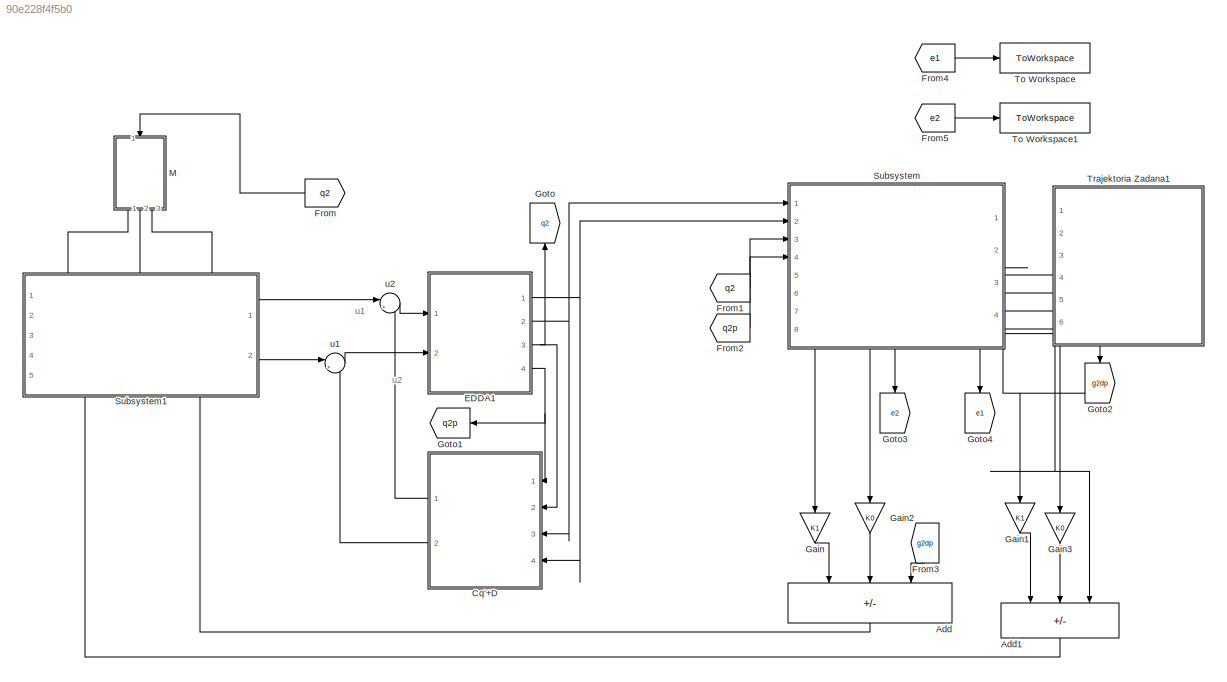
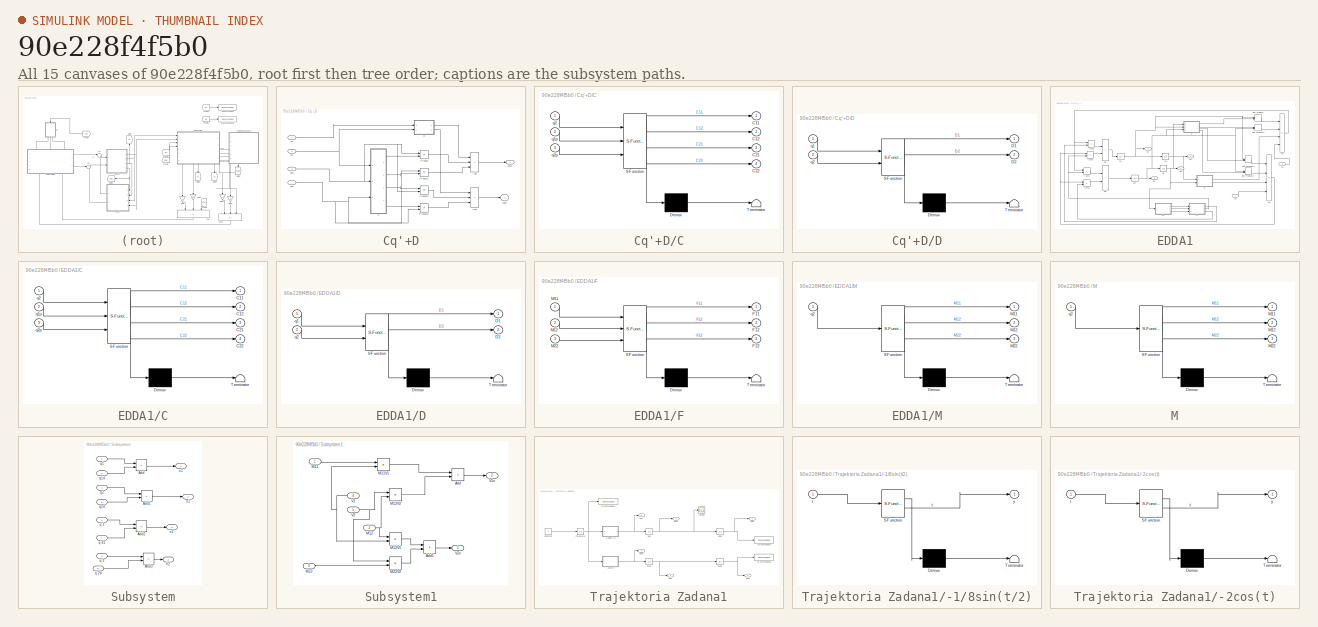
[diagram: thumbnail index - all 15 canvases of the model, root first then tree order]
MODEL slx_90e228f4f5b0
KIND model
CONFIG AbsTol = auto
CONFIG EnableMultiTasking = off
CONFIG FixedStep = auto
CONFIG MaxStep = auto
CONFIG MinStep = auto
CONFIG RelTol = 1e-10
CONFIG SampleTimeConstraint = Unconstrained
CONFIG SolverName = ode45
CONFIG StartTime = 0.0
CONFIG StopTime = 100
BLOCK [Sum] Add
  IconShape = rectangular
  Inputs = --+
  NameLocation = left
  Ports = [3, 1]
BLOCK [Sum] Add1
  IconShape = rectangular
  Inputs = --+
  NameLocation = left
  Ports = [3, 1]
BLOCK [SubSystem] Cq'+D
  NameLocation = top
  Ports = [4, 2]
  RequestExecContextInheritance = off
BLOCK [Sum] Cq'+D/Add
  IconShape = rectangular
  Inputs = +++
  Ports = [3, 1]
BLOCK [Sum] Cq'+D/Add1
  IconShape = rectangular
  Inputs = +++
  Ports = [3, 1]
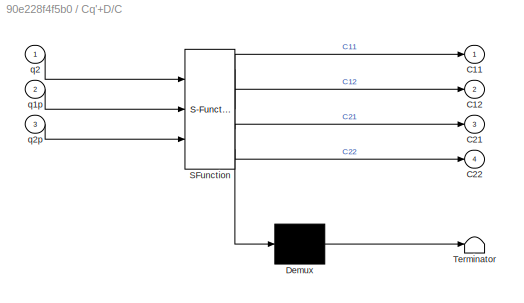
BLOCK [SubSystem] Cq'+D/C
  ErrorFcn = Stateflow.Translate.translate
  PermitHierarchicalResolution = ExplicitOnly
  Ports = [3, 4]
  RequestExecContextInheritance = off
  SFBlockType = MATLAB Function
  TreatAsAtomicUnit = on
BLOCK [Demux] Cq'+D/C/ Demux 
  Outputs = 1
  Ports = [1, 1]
BLOCK [S-Function] Cq'+D/C/ SFunction 
  EnableBusSupport = on
  FunctionName = sf_sfun
  Parameters = Theta4
  PortCounts = [3 5]
  Ports = [3, 5]
  SFcnIsStateOwnerBlock = off
  SFunctionDeploymentMode = off
  Tag = Stateflow S-Function 14
BLOCK [Terminator] Cq'+D/C/ Terminator 
BLOCK [Outport] Cq'+D/C/C11
BLOCK [Outport] Cq'+D/C/C12
  Port = 2
BLOCK [Outport] Cq'+D/C/C21
  Port = 3
BLOCK [Outport] Cq'+D/C/C22
  Port = 4
BLOCK [Inport] Cq'+D/C/q1p
  Port = 2
BLOCK [Inport] Cq'+D/C/q2
BLOCK [Inport] Cq'+D/C/q2p
  Port = 3
BLOCK [SubSystem] Cq'+D/D
  ErrorFcn = Stateflow.Translate.translate
  PermitHierarchicalResolution = ExplicitOnly
  Ports = [2, 2]
  RequestExecContextInheritance = off
  SFBlockType = MATLAB Function
  TreatAsAtomicUnit = on
BLOCK [Demux] Cq'+D/D/ Demux 
  Outputs = 1
  Ports = [1, 1]
BLOCK [S-Function] Cq'+D/D/ SFunction 
  EnableBusSupport = on
  FunctionName = sf_sfun
  Parameters = Theta2,Theta4,g
  PortCounts = [2 3]
  Ports = [2, 3]
  SFcnIsStateOwnerBlock = off
  SFunctionDeploymentMode = off
  Tag = Stateflow S-Function 13
BLOCK [Terminator] Cq'+D/D/ Terminator 
BLOCK [Outport] Cq'+D/D/D1
BLOCK [Outport] Cq'+D/D/D2
  Port = 2
BLOCK [Inport] Cq'+D/D/q1
BLOCK [Inport] Cq'+D/D/q2
  Port = 2
BLOCK [Product] Cq'+D/Product
  Ports = [2, 1]
BLOCK [Product] Cq'+D/Product1
  Ports = [2, 1]
BLOCK [Product] Cq'+D/Product2
  Ports = [2, 1]
BLOCK [Product] Cq'+D/Product3
  Ports = [2, 1]
BLOCK [Outport] Cq'+D/cqd1
  Port = 2
BLOCK [Outport] Cq'+D/cqd2
BLOCK [Inport] Cq'+D/q1
  Port = 4
BLOCK [Inport] Cq'+D/q1p
  NameLocation = right
  Port = 3
BLOCK [Inport] Cq'+D/q2
  Port = 2
BLOCK [Inport] Cq'+D/q2p
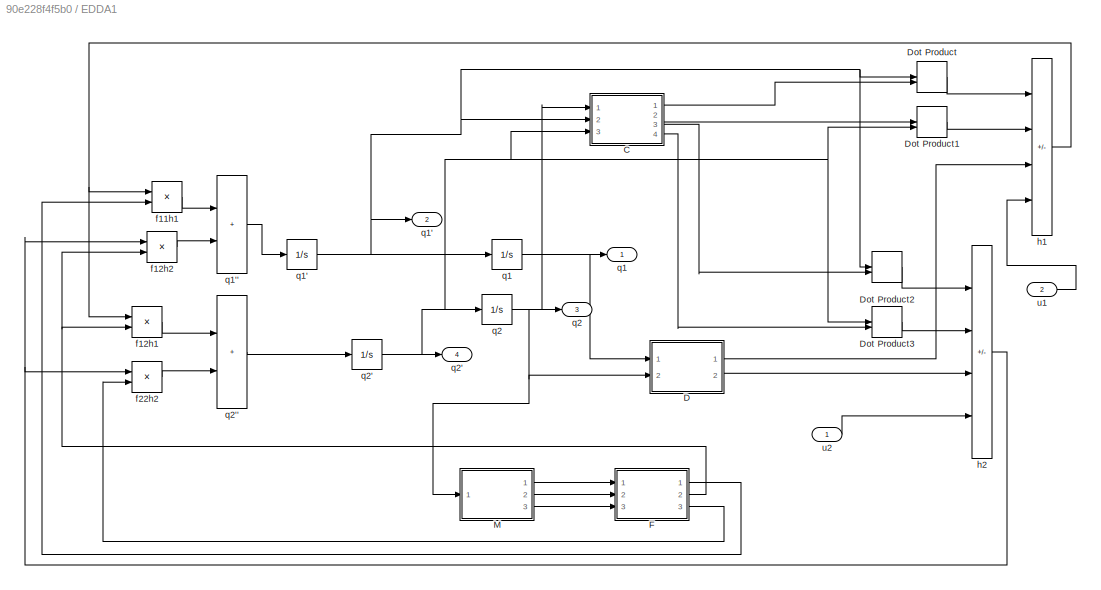
BLOCK [SubSystem] EDDA1
  Ports = [2, 4]
  RequestExecContextInheritance = off
BLOCK [Integrator] EDDA1/ q1
  Ports = [1, 1]
BLOCK [Integrator] EDDA1/ q1'
  Ports = [1, 1]
BLOCK [Integrator] EDDA1/ q2
  Ports = [1, 1]
BLOCK [Integrator] EDDA1/ q2'
  Ports = [1, 1]
BLOCK [SubSystem] EDDA1/C
  ErrorFcn = Stateflow.Translate.translate
  PermitHierarchicalResolution = ExplicitOnly
  Ports = [3, 4]
  RequestExecContextInheritance = off
  SFBlockType = MATLAB Function
  TreatAsAtomicUnit = on
BLOCK [Demux] EDDA1/C/ Demux 
  Outputs = 1
  Ports = [1, 1]
BLOCK [S-Function] EDDA1/C/ SFunction 
  EnableBusSupport = on
  FunctionName = sf_sfun
  Parameters = Theta4
  PortCounts = [3 5]
  Ports = [3, 5]
  SFcnIsStateOwnerBlock = off
  SFunctionDeploymentMode = off
  Tag = Stateflow S-Function 7
BLOCK [Terminator] EDDA1/C/ Terminator 
BLOCK [Outport] EDDA1/C/C11
BLOCK [Outport] EDDA1/C/C12
  Port = 2
BLOCK [Outport] EDDA1/C/C21
  Port = 3
BLOCK [Outport] EDDA1/C/C22
  Port = 4
BLOCK [Inport] EDDA1/C/q1p
  Port = 2
BLOCK [Inport] EDDA1/C/q2
BLOCK [Inport] EDDA1/C/q2p
  Port = 3
BLOCK [SubSystem] EDDA1/D
  ErrorFcn = Stateflow.Translate.translate
  PermitHierarchicalResolution = ExplicitOnly
  Ports = [2, 2]
  RequestExecContextInheritance = off
  SFBlockType = MATLAB Function
  TreatAsAtomicUnit = on
BLOCK [Demux] EDDA1/D/ Demux 
  Outputs = 1
  Ports = [1, 1]
BLOCK [S-Function] EDDA1/D/ SFunction 
  EnableBusSupport = on
  FunctionName = sf_sfun
  Parameters = Theta2,Theta4,g
  PortCounts = [2 3]
  Ports = [2, 3]
  SFcnIsStateOwnerBlock = off
  SFunctionDeploymentMode = off
  Tag = Stateflow S-Function 8
BLOCK [Terminator] EDDA1/D/ Terminator 
BLOCK [Outport] EDDA1/D/D1
BLOCK [Outport] EDDA1/D/D2
  Port = 2
BLOCK [Inport] EDDA1/D/q1
BLOCK [Inport] EDDA1/D/q2
  Port = 2
BLOCK [DotProduct] EDDA1/Dot Product
  OutDataTypeStr = Inherit: Inherit via internal rule
BLOCK [DotProduct] EDDA1/Dot Product1
  OutDataTypeStr = Inherit: Inherit via internal rule
BLOCK [DotProduct] EDDA1/Dot Product2
  OutDataTypeStr = Inherit: Inherit via internal rule
BLOCK [DotProduct] EDDA1/Dot Product3
  OutDataTypeStr = Inherit: Inherit via internal rule
BLOCK [SubSystem] EDDA1/F
  ErrorFcn = Stateflow.Translate.translate
  PermitHierarchicalResolution = ExplicitOnly
  Ports = [3, 3]
  RequestExecContextInheritance = off
  SFBlockType = MATLAB Function
  TreatAsAtomicUnit = on
BLOCK [Demux] EDDA1/F/ Demux 
  Outputs = 1
  Ports = [1, 1]
BLOCK [S-Function] EDDA1/F/ SFunction 
  EnableBusSupport = on
  FunctionName = sf_sfun
  PortCounts = [3 4]
  Ports = [3, 4]
  SFcnIsStateOwnerBlock = off
  SFunctionDeploymentMode = off
  Tag = Stateflow S-Function 9
BLOCK [Terminator] EDDA1/F/ Terminator 
BLOCK [Outport] EDDA1/F/F11
BLOCK [Outport] EDDA1/F/F12
  Port = 2
BLOCK [Outport] EDDA1/F/F22
  Port = 3
BLOCK [Inport] EDDA1/F/M11
BLOCK [Inport] EDDA1/F/M12
  Port = 2
BLOCK [Inport] EDDA1/F/M22
  Port = 3
BLOCK [SubSystem] EDDA1/M
  ErrorFcn = Stateflow.Translate.translate
  PermitHierarchicalResolution = ExplicitOnly
  Ports = [1, 3]
  RequestExecContextInheritance = off
  SFBlockType = MATLAB Function
  TreatAsAtomicUnit = on
BLOCK [Demux] EDDA1/M/ Demux 
  Outputs = 1
  Ports = [1, 1]
BLOCK [S-Function] EDDA1/M/ SFunction 
  EnableBusSupport = on
  FunctionName = sf_sfun
  Parameters = Theta1,Theta3,Theta4
  PortCounts = [1 4]
  Ports = [1, 4]
  SFcnIsStateOwnerBlock = off
  SFunctionDeploymentMode = off
  Tag = Stateflow S-Function 10
BLOCK [Terminator] EDDA1/M/ Terminator 
BLOCK [Outport] EDDA1/M/M11
BLOCK [Outport] EDDA1/M/M12
  Port = 2
BLOCK [Outport] EDDA1/M/M22
  Port = 3
BLOCK [Inport] EDDA1/M/q2
BLOCK [Product] EDDA1/f11h1
  Ports = [2, 1]
BLOCK [Product] EDDA1/f12h1
  Ports = [2, 1]
BLOCK [Product] EDDA1/f12h2
  Ports = [2, 1]
BLOCK [Product] EDDA1/f22h2
  Ports = [2, 1]
BLOCK [Sum] EDDA1/h1
  IconShape = rectangular
  Inputs = ---+
  Ports = [4, 1]
BLOCK [Sum] EDDA1/h2
  IconShape = rectangular
  Inputs = ---+
  Ports = [4, 1]
BLOCK [Outport] EDDA1/q1
BLOCK [Outport] EDDA1/q1'
  Port = 2
BLOCK [Sum] EDDA1/q1''
  IconShape = rectangular
  Ports = [2, 1]
BLOCK [Outport] EDDA1/q2
  Port = 3
BLOCK [Outport] EDDA1/q2'
  Port = 4
BLOCK [Sum] EDDA1/q2''
  IconShape = rectangular
  Ports = [2, 1]
BLOCK [Inport] EDDA1/u1
  Port = 2
BLOCK [Inport] EDDA1/u2
BLOCK [From] From
  GotoTag = q2
  NameLocation = top
BLOCK [From] From1
  GotoTag = q2
BLOCK [From] From2
  GotoTag = q2p
BLOCK [From] From3
  GotoTag = g2dp
  NameLocation = left
BLOCK [From] From4
  GotoTag = e1
BLOCK [From] From5
  GotoTag = e2
BLOCK [Gain] Gain
  Gain = K1
  NameLocation = left
BLOCK [Gain] Gain1
  Gain = K1
  NameLocation = left
BLOCK [Gain] Gain2
  Gain = K0
  NameLocation = left
BLOCK [Gain] Gain3
  Gain = K0
  NameLocation = left
BLOCK [Goto] Goto
  GotoTag = q2
  NameLocation = right
BLOCK [Goto] Goto1
  GotoTag = q2p
  NameLocation = top
BLOCK [Goto] Goto2
  GotoTag = g2dp
  NameLocation = left
BLOCK [Goto] Goto3
  GotoTag = e2
  NameLocation = left
BLOCK [Goto] Goto4
  GotoTag = e1
  NameLocation = left
BLOCK [SubSystem] M
  ErrorFcn = Stateflow.Translate.translate
  NameLocation = left
  PermitHierarchicalResolution = ExplicitOnly
  Ports = [1, 3]
  RequestExecContextInheritance = off
  SFBlockType = MATLAB Function
  TreatAsAtomicUnit = on
BLOCK [Demux] M/ Demux 
  Outputs = 1
  Ports = [1, 1]
BLOCK [S-Function] M/ SFunction 
  EnableBusSupport = on
  FunctionName = sf_sfun
  Parameters = Theta1,Theta3,Theta4
  PortCounts = [1 4]
  Ports = [1, 4]
  SFcnIsStateOwnerBlock = off
  SFunctionDeploymentMode = off
  Tag = Stateflow S-Function 15
BLOCK [Terminator] M/ Terminator 
BLOCK [Outport] M/M11
BLOCK [Outport] M/M12
  Port = 2
BLOCK [Outport] M/M22
  Port = 3
BLOCK [Inport] M/q2
BLOCK [SubSystem] Subsystem
  PortSchema = {"entries":[{"content":{"sides":[{"content":{"connectorIds":["In1","In2","In3","In4"]},"type":"ConnectorPlacement.EquallySpacedRectSide","uuid":"3303e5f2-67ee-45b6-97a0-23586c48cd6c"},{"content":{"connectorIds":["In5","In6","In7","In8"],"side":"RIGHT"},"type":"ConnectorPlacement.EquallySpacedRectSide","uuid":"1b0957a8-25ba-4d38-8463-d98e460b7b4b"},{"content":{"connectorIds":[],"side":"TOP"},"type"...<+446ch>
  Ports = [8, 4]
  RequestExecContextInheritance = off
BLOCK [Sum] Subsystem/Add
  IconShape = rectangular
  Inputs = +-
  Ports = [2, 1]
BLOCK [Sum] Subsystem/Add1
  IconShape = rectangular
  Inputs = +-
  Ports = [2, 1]
BLOCK [Sum] Subsystem/Add2
  IconShape = rectangular
  Inputs = +-
  Ports = [2, 1]
BLOCK [Sum] Subsystem/Add3
  IconShape = rectangular
  Inputs = +-
  Ports = [2, 1]
BLOCK [Outport] Subsystem/e1
  Port = 4
BLOCK [Outport] Subsystem/e1'
  Port = 3
BLOCK [Outport] Subsystem/e2
  Port = 2
BLOCK [Outport] Subsystem/e2'
BLOCK [Inport] Subsystem/q'1
BLOCK [Inport] Subsystem/q'2
  Port = 4
BLOCK [Inport] Subsystem/q'2d
  Port = 8
BLOCK [Inport] Subsystem/q'd1
  Port = 7
BLOCK [Inport] Subsystem/q1
  Port = 2
BLOCK [Inport] Subsystem/q1d
  Port = 5
BLOCK [Inport] Subsystem/q2
  Port = 3
BLOCK [Inport] Subsystem/q2d
  Port = 6
BLOCK [SubSystem] Subsystem1
  PortSchema = {"entries":[{"content":{"sides":[{"content":{"connectorIds":[]},"type":"ConnectorPlacement.EquallySpacedRectSide","uuid":"3303e5f2-67ee-45b6-97a0-23586c48cd6c"},{"content":{"connectorIds":["Out1","Out2"],"side":"RIGHT"},"type":"ConnectorPlacement.EquallySpacedRectSide","uuid":"1b0957a8-25ba-4d38-8463-d98e460b7b4b"},{"content":{"connectorIds":["In1","In2","In3"],"side":"TOP"},"type":"ConnectorPlace...<+414ch>
  Ports = [5, 2]
  RequestExecContextInheritance = off
BLOCK [Sum] Subsystem1/Add
  IconShape = rectangular
  Ports = [2, 1]
BLOCK [Sum] Subsystem1/Add1
  IconShape = rectangular
  Ports = [2, 1]
BLOCK [Inport] Subsystem1/M11
BLOCK [Product] Subsystem1/M11V1
  Ports = [2, 1]
BLOCK [Inport] Subsystem1/M12
  Port = 2
BLOCK [Product] Subsystem1/M12V1
  Ports = [2, 1]
BLOCK [Product] Subsystem1/M12V2
  Ports = [2, 1]
BLOCK [Inport] Subsystem1/M22
  Port = 3
BLOCK [Product] Subsystem1/M22V2
  Ports = [2, 1]
BLOCK [Inport] Subsystem1/V1
  NameLocation = top
  Port = 4
BLOCK [Outport] Subsystem1/V1n
  Port = 2
BLOCK [Inport] Subsystem1/V2
  Port = 5
BLOCK [Outport] Subsystem1/V2n
BLOCK [ToWorkspace] To Workspace
  FixptAsFi = on
  MaxDataPoints = inf
  Ports = [1]
  SampleTime = -1
  VariableName = e1
BLOCK [ToWorkspace] To Workspace1
  FixptAsFi = on
  MaxDataPoints = inf
  Ports = [1]
  SampleTime = -1
  VariableName = e2
BLOCK [SubSystem] Trajektoria Zadana1
  NameLocation = top
  PortSchema = {"entries":[{"content":{"sides":[{"content":{"connectorIds":[]},"type":"ConnectorPlacement.EquallySpacedRectSide","uuid":"a4d08f75-1dc7-466a-b8d3-29851c7ae152"},{"content":{"connectorIds":["Out1","Out2","Out3","Out4"],"side":"RIGHT"},"type":"ConnectorPlacement.EquallySpacedRectSide","uuid":"ff34c384-9eaf-40f0-a095-f6b1ecae056f"},{"content":{"connectorIds":[],"side":"TOP"},"type":"ConnectorPlacemen...<+413ch>
  Ports = [0, 6]
  RequestExecContextInheritance = off
BLOCK [Integrator] Trajektoria Zadana1/ q1d
  InitialCondition = 1/4
  Ports = [1, 1]
BLOCK [Integrator] Trajektoria Zadana1/ q1d1
  Ports = [1, 1]
BLOCK [Integrator] Trajektoria Zadana1/ q1d2
  Ports = [1, 1]
BLOCK [Integrator] Trajektoria Zadana1/ q1d3
  InitialCondition = 2
  Ports = [1, 1]
BLOCK [SubSystem] Trajektoria Zadana1/-1//8sin(t//2)
  ErrorFcn = Stateflow.Translate.translate
  PermitHierarchicalResolution = ExplicitOnly
  Ports = [1, 1]
  RequestExecContextInheritance = off
  SFBlockType = MATLAB Function
  TreatAsAtomicUnit = on
BLOCK [Demux] Trajektoria Zadana1/-1//8sin(t//2)/ Demux 
  Outputs = 1
  Ports = [1, 1]
BLOCK [S-Function] Trajektoria Zadana1/-1//8sin(t//2)/ SFunction 
  EnableBusSupport = on
  FunctionName = sf_sfun
  PortCounts = [1 2]
  Ports = [1, 2]
  SFcnIsStateOwnerBlock = off
  SFunctionDeploymentMode = off
  Tag = Stateflow S-Function 12
BLOCK [Terminator] Trajektoria Zadana1/-1//8sin(t//2)/ Terminator 
BLOCK [Inport] Trajektoria Zadana1/-1//8sin(t//2)/t
BLOCK [Outport] Trajektoria Zadana1/-1//8sin(t//2)/y
BLOCK [SubSystem] Trajektoria Zadana1/-2cos(t)
  ErrorFcn = Stateflow.Translate.translate
  PermitHierarchicalResolution = ExplicitOnly
  Ports = [1, 1]
  RequestExecContextInheritance = off
  SFBlockType = MATLAB Function
  TreatAsAtomicUnit = on
BLOCK [Demux] Trajektoria Zadana1/-2cos(t)/ Demux 
  Outputs = 1
  Ports = [1, 1]
BLOCK [S-Function] Trajektoria Zadana1/-2cos(t)/ SFunction 
  EnableBusSupport = on
  FunctionName = sf_sfun
  PortCounts = [1 2]
  Ports = [1, 2]
  SFcnIsStateOwnerBlock = off
  SFunctionDeploymentMode = off
  Tag = Stateflow S-Function 11
BLOCK [Terminator] Trajektoria Zadana1/-2cos(t)/ Terminator 
BLOCK [Inport] Trajektoria Zadana1/-2cos(t)/t
BLOCK [Outport] Trajektoria Zadana1/-2cos(t)/y
BLOCK [Constant] Trajektoria Zadana1/Constant
BLOCK [Integrator] Trajektoria Zadana1/Integrator
  Ports = [1, 1]
BLOCK [Scope] Trajektoria Zadana1/Scope
  Floating = off
  NumInputPorts = 1
  Ports = [1]
  ScopeSpecificationString = Simulink.scopes.TimeScopeBlockCfg('CurrentConfiguration', extmgr.ConfigurationSet(extmgr.Configuration('Core','General UI',true),extmgr.Configuration('Core','Source UI',true),extmgr.Configuration('Sources','WiredSimulink',true),extmgr.Configuration('Visuals','Time Domain',true,'SerializedDisplays',{struct('MinYLimReal','-0.3125','MaxYLimReal','0.3125','YLabelReal','','MinYLimMag','0.00000','MaxYLi...<+1318ch>
BLOCK [ToWorkspace] Trajektoria Zadana1/To Workspace
  FixptAsFi = on
  MaxDataPoints = inf
  Ports = [1]
  SampleTime = -1
  VariableName = q1ds
BLOCK [ToWorkspace] Trajektoria Zadana1/To Workspace1
  FixptAsFi = on
  MaxDataPoints = inf
  Ports = [1]
  SampleTime = -1
  VariableName = q2ds
BLOCK [ToWorkspace] Trajektoria Zadana1/To Workspace2
  FixptAsFi = on
  MaxDataPoints = inf
  Ports = [1]
  SampleTime = -1
  VariableName = t
BLOCK [Outport] Trajektoria Zadana1/q1d
BLOCK [Outport] Trajektoria Zadana1/q1d'
  Port = 3
BLOCK [Outport] Trajektoria Zadana1/q1d''
  Port = 5
BLOCK [Outport] Trajektoria Zadana1/q2d
  Port = 2
BLOCK [Outport] Trajektoria Zadana1/q2d'
  Port = 4
BLOCK [Outport] Trajektoria Zadana1/q2d''
  Port = 6
BLOCK [Sum] u1
  Inputs = |++
  Ports = [2, 1]
BLOCK [Sum] u2
  Inputs = |++
  Ports = [2, 1]
ANNOTATION (root): u1
ANNOTATION (root): u2
LINE Add1:1 -> Subsystem1:4
LINE Add:1 -> Subsystem1:5
LINE Cq'+D/Add1:1 -> Cq'+D/cqd2:1
LINE Cq'+D/Add:1 -> Cq'+D/cqd1:1
LINE Cq'+D/C:1 -> Cq'+D/Product:2
LINE Cq'+D/C:2 -> Cq'+D/Product1:2
LINE Cq'+D/C:3 -> Cq'+D/Product2:1
LINE Cq'+D/C:4 -> Cq'+D/Product3:1
LINE Cq'+D/D:1 -> Cq'+D/Add:1
LINE Cq'+D/D:2 -> Cq'+D/Add1:1
LINE Cq'+D/Product1:1 -> Cq'+D/Add:3
LINE Cq'+D/Product2:1 -> Cq'+D/Add1:2
LINE Cq'+D/Product3:1 -> Cq'+D/Add1:3
LINE Cq'+D/Product:1 -> Cq'+D/Add:2
LINE Cq'+D/q1:1 -> Cq'+D/D:1
NET Cq'+D/q1p:1 -> Cq'+D/C:2, Cq'+D/Product2:2, Cq'+D/Product:1
NET Cq'+D/q2:1 -> Cq'+D/C:1, Cq'+D/D:2
NET Cq'+D/q2p:1 -> Cq'+D/C:3, Cq'+D/Product1:1, Cq'+D/Product3:2
LINE Cq'+D:1 -> u2:2
LINE Cq'+D:2 -> u1:2
NET EDDA1/ q1':1 -> EDDA1/ q1:1, EDDA1/C:2, EDDA1/Dot Product2:1, EDDA1/Dot Product:1, EDDA1/q1':1
NET EDDA1/ q1:1 -> EDDA1/D:1, EDDA1/q1:1
NET EDDA1/ q2':1 -> EDDA1/ q2:1, EDDA1/C:3, EDDA1/Dot Product1:2, EDDA1/Dot Product3:1, EDDA1/q2':1
NET EDDA1/ q2:1 -> EDDA1/C:1, EDDA1/D:2, EDDA1/M:1, EDDA1/q2:1
LINE EDDA1/C:1 -> EDDA1/Dot Product:2
LINE EDDA1/C:2 -> EDDA1/Dot Product1:1
LINE EDDA1/C:3 -> EDDA1/Dot Product2:2
LINE EDDA1/C:4 -> EDDA1/Dot Product3:2
LINE EDDA1/D:1 -> EDDA1/h1:3
LINE EDDA1/D:2 -> EDDA1/h2:3
LINE EDDA1/Dot Product1:1 -> EDDA1/h1:2
LINE EDDA1/Dot Product2:1 -> EDDA1/h2:1
LINE EDDA1/Dot Product3:1 -> EDDA1/h2:2
LINE EDDA1/Dot Product:1 -> EDDA1/h1:1
LINE EDDA1/F:1 -> EDDA1/f11h1:2
NET EDDA1/F:2 -> EDDA1/f12h1:2, EDDA1/f12h2:2
LINE EDDA1/F:3 -> EDDA1/f22h2:2
LINE EDDA1/M:1 -> EDDA1/F:1
LINE EDDA1/M:2 -> EDDA1/F:2
LINE EDDA1/M:3 -> EDDA1/F:3
LINE EDDA1/f11h1:1 -> EDDA1/q1'':1
LINE EDDA1/f12h1:1 -> EDDA1/q2'':1
LINE EDDA1/f12h2:1 -> EDDA1/q1'':2
LINE EDDA1/f22h2:1 -> EDDA1/q2'':2
NET EDDA1/h1:1 -> EDDA1/f11h1:1, EDDA1/f12h1:1
NET EDDA1/h2:1 -> EDDA1/f12h2:1, EDDA1/f22h2:1
LINE EDDA1/q1'':1 -> EDDA1/ q1':1
LINE EDDA1/q2'':1 -> EDDA1/ q2':1
LINE EDDA1/u1:1 -> EDDA1/h1:4
LINE EDDA1/u2:1 -> EDDA1/h2:4
NET EDDA1:1 -> Cq'+D:4, Subsystem:2
NET EDDA1:2 -> Cq'+D:3, Subsystem:1
NET EDDA1:3 -> Cq'+D:2, Goto:1
NET EDDA1:4 -> Cq'+D:1, Goto1:1
LINE From1:1 -> Subsystem:3
LINE From2:1 -> Subsystem:4
LINE From3:1 -> Add:3
LINE From4:1 -> To Workspace:1
LINE From5:1 -> To Workspace1:1
LINE From:1 -> M:1
LINE Gain1:1 -> Add1:1
LINE Gain2:1 -> Add:2
LINE Gain3:1 -> Add1:2
LINE Gain:1 -> Add:1
LINE M:1 -> Subsystem1:1
LINE M:2 -> Subsystem1:2
LINE M:3 -> Subsystem1:3
LINE Subsystem/Add1:1 -> Subsystem/e2:1
LINE Subsystem/Add2:1 -> Subsystem/e1':1
LINE Subsystem/Add3:1 -> Subsystem/e2':1
LINE Subsystem/Add:1 -> Subsystem/e1:1
LINE Subsystem/q'1:1 -> Subsystem/Add2:1
LINE Subsystem/q'2:1 -> Subsystem/Add3:1
LINE Subsystem/q'2d:1 -> Subsystem/Add3:2
LINE Subsystem/q'd1:1 -> Subsystem/Add2:2
LINE Subsystem/q1:1 -> Subsystem/Add:1
LINE Subsystem/q1d:1 -> Subsystem/Add:2
LINE Subsystem/q2:1 -> Subsystem/Add1:1
LINE Subsystem/q2d:1 -> Subsystem/Add1:2
LINE Subsystem1/Add1:1 -> Subsystem1/V2n:1
LINE Subsystem1/Add:1 -> Subsystem1/V1n:1
LINE Subsystem1/M11:1 -> Subsystem1/M11V1:1
LINE Subsystem1/M11V1:1 -> Subsystem1/Add:1
NET Subsystem1/M12:1 -> Subsystem1/M12V1:1, Subsystem1/M12V2:2
LINE Subsystem1/M12V1:1 -> Subsystem1/Add1:1
LINE Subsystem1/M12V2:1 -> Subsystem1/Add:2
LINE Subsystem1/M22:1 -> Subsystem1/M22V2:2
LINE Subsystem1/M22V2:1 -> Subsystem1/Add1:2
NET Subsystem1/V1:1 -> Subsystem1/M11V1:2, Subsystem1/M12V1:2
NET Subsystem1/V2:1 -> Subsystem1/M12V2:1, Subsystem1/M22V2:1
LINE Subsystem1:1 -> u2:1
LINE Subsystem1:2 -> u1:1
LINE Subsystem:1 -> Gain:1
NET Subsystem:2 -> Gain2:1, Goto3:1
LINE Subsystem:3 -> Gain1:1
NET Subsystem:4 -> Gain3:1, Goto4:1
NET Trajektoria Zadana1/ q1d1:1 -> Trajektoria Zadana1/ q1d3:1, Trajektoria Zadana1/q2d':1
NET Trajektoria Zadana1/ q1d2:1 -> Trajektoria Zadana1/To Workspace:1, Trajektoria Zadana1/q1d:1
NET Trajektoria Zadana1/ q1d3:1 -> Trajektoria Zadana1/To Workspace1:1, Trajektoria Zadana1/q2d:1
NET Trajektoria Zadana1/ q1d:1 -> Trajektoria Zadana1/ q1d2:1, Trajektoria Zadana1/Scope:1, Trajektoria Zadana1/q1d':1
NET Trajektoria Zadana1/-1//8sin(t//2):1 -> Trajektoria Zadana1/ q1d:1, Trajektoria Zadana1/q1d'':1
NET Trajektoria Zadana1/-2cos(t):1 -> Trajektoria Zadana1/ q1d1:1, Trajektoria Zadana1/q2d'':1
LINE Trajektoria Zadana1/Constant:1 -> Trajektoria Zadana1/Integrator:1
NET Trajektoria Zadana1/Integrator:1 -> Trajektoria Zadana1/-1//8sin(t//2):1, Trajektoria Zadana1/-2cos(t):1, Trajektoria Zadana1/To Workspace2:1
LINE Trajektoria Zadana1:1 -> Subsystem:5
LINE Trajektoria Zadana1:2 -> Subsystem:6
LINE Trajektoria Zadana1:3 -> Subsystem:7
LINE Trajektoria Zadana1:4 -> Subsystem:8
LINE Trajektoria Zadana1:5 -> Add1:3
LINE Trajektoria Zadana1:6 -> Goto2:1
LINE u1:1 -> EDDA1:2
LINE u2:1 -> EDDA1:1
note: NET lines group one-source signal fan-out (src -> all destinations, sorted); 1:1 wires keep LINE
CHART M states=1 transitions=1
  STATE_LABEL 'eML_blk_kernel()'
  STATE_LABEL 'SCRIPT:\nfunction [M11, M12,  M22]= fcn(q2, Theta1,  Theta3, Theta4)\n\nM11=Theta1+0.6*Theta4*cos(q2);\nM12=Theta3+0.3*Theta4*cos(q2);\n%M21=Theta3+0.3*Theta4*cos(q2);\nM22=Theta3;\n'
CHART EDDA1/C states=1 transitions=1
  STATE_LABEL 'eML_blk_kernel()'
  STATE_LABEL 'SCRIPT:\nfunction [C11,C12,C21,C22]= fcn(q2 ,q1p  ,q2p, Theta4)\na=0.3*Theta4*sin(q2);\nC11=-q2p*a;\nC12=-(q1p+q2p)*a;\nC21=q1p*a;\nC22=0*a;\n'
CHART EDDA1/D states=1 transitions=1
  STATE_LABEL 'eML_blk_kernel()'
  STATE_LABEL 'SCRIPT:\nfunction [D1, D2]= fcn(q1, q2, g, Theta4, Theta2)\n\nD1=Theta2*cos(q1)+Theta4*cos(q1+q2)*g;\nD2=Theta4*cos(q1+q2)*g;\n'
CHART EDDA1/F states=1 transitions=1
  STATE_LABEL 'eML_blk_kernel()'
  STATE_LABEL 'SCRIPT:\nfunction [F11, F12,  F22]= fcn(M11, M12,  M22)\n\nDet=M11*M22-M12*M12;\nF11=M22/Det;\nF12=-M12/Det;\nF22=M11/Det;\n'
CHART EDDA1/M states=1 transitions=1
  STATE_LABEL 'eML_blk_kernel()'
  STATE_LABEL 'SCRIPT:\nfunction [M11, M12,  M22]= fcn(q2, Theta1,  Theta3, Theta4)\n\nM11=Theta1+0.6*Theta4*cos(q2);\nM12=Theta3+0.3*Theta4*cos(q2);\n%M21=Theta3+0.3*Theta4*cos(q2);\nM22=Theta3;\n'
CHART Trajektoria Zadana1/-2cos(t) states=1 transitions=1
  STATE_LABEL 'eML_blk_kernel()'
  STATE_LABEL 'SCRIPT:\nfunction y = fcn(t)\n\ny = -2*cos(t);\n'
CHART Trajektoria Zadana1/-1//8sin(t//2) states=1 transitions=1
  STATE_LABEL 'eML_blk_kernel()'
  STATE_LABEL 'SCRIPT:\nfunction y = fcn(t)\n\ny =-(1/8)*sin(t/2);\n'
CHART Cq'+D/D states=1 transitions=1
  STATE_LABEL 'eML_blk_kernel()'
  STATE_LABEL 'SCRIPT:\nfunction [D1, D2]= fcn(q1, q2, g, Theta4, Theta2)\n\nD1=Theta2*cos(q1)+Theta4*cos(q1+q2)*g;\nD2=Theta4*cos(q1+q2)*g;\n'
CHART Cq'+D/C states=1 transitions=1
  STATE_LABEL 'eML_blk_kernel()'
  STATE_LABEL 'SCRIPT:\nfunction [C11,C12,C21,C22]= fcn(q2 ,q1p  ,q2p, Theta4)\na=0.3*Theta4*sin(q2);\nC11=-q2p*a;\nC12=-(q1p+q2p)*a;\nC21=q1p*a;\nC22=0*a;\n'
CHART  states=0 transitions=0
CHART  states=0 transitions=0
CHART  states=0 transitions=0
CHART  states=0 transitions=0
CHART  states=0 transitions=0
CHART  states=0 transitions=0
CHART  states=0 transitions=0
CHART  states=0 transitions=0
CHART  states=0 transitions=0
